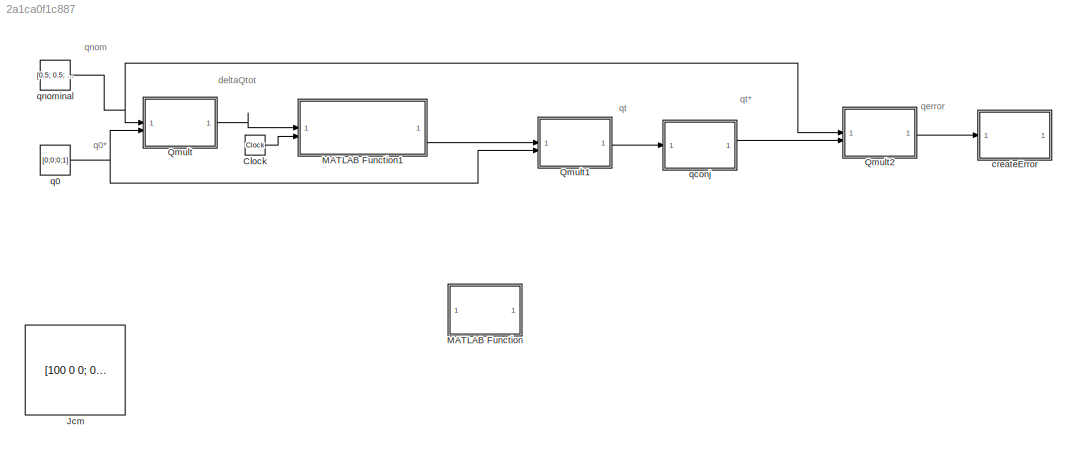
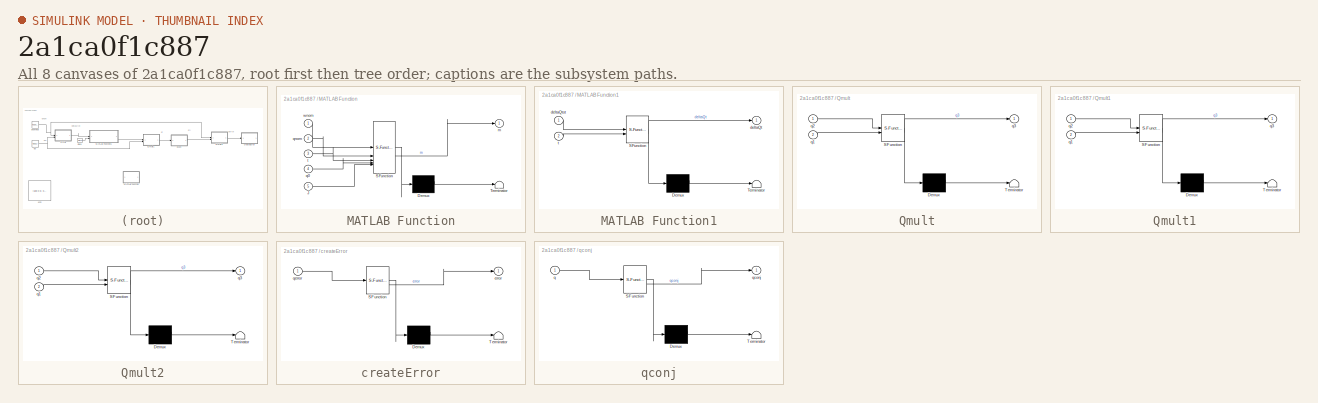
[diagram: thumbnail index - all 8 canvases of the model, root first then tree order]
MODEL slx_2a1ca0f1c887
KIND model
CONFIG AbsTol = auto
CONFIG EnableMultiTasking = off
CONFIG FixedStep = auto
CONFIG MaxStep = auto
CONFIG MinStep = auto
CONFIG RelTol = 1e-3
CONFIG SampleTimeConstraint = Unconstrained
CONFIG SolverName = VariableStepAuto
CONFIG StartTime = 0.0
CONFIG StopTime = 1800.0
BLOCK [Clock] Clock
BLOCK [Constant] Jcm
  Commented = on
  Value = [100 0 0; 0 60 0; 0 0 50]
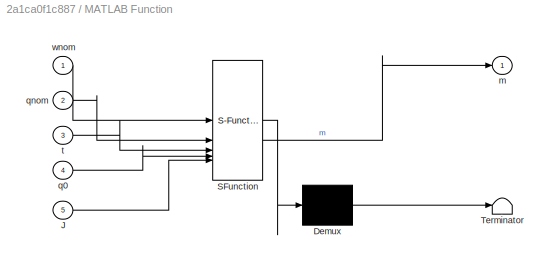
BLOCK [SubSystem] MATLAB Function
  ErrorFcn = Stateflow.Translate.translate
  LibrarySourceBlock = simulink/User-Defined\nFunctions/MATLAB Function
  PermitHierarchicalResolution = ExplicitOnly
  SFBlockType = MATLAB Function
  TreatAsAtomicUnit = on
BLOCK [Demux] MATLAB Function/ Demux 
  Outputs = 1
BLOCK [S-Function] MATLAB Function/ SFunction 
  EnableBusSupport = off
  FunctionName = sf_sfun
  PortCounts = [5 2]
  SFcnIsStateOwnerBlock = off
  SFunctionDeploymentMode = off
  Tag = Stateflow S-Function 7
BLOCK [Terminator] MATLAB Function/ Terminator 
BLOCK [Inport] MATLAB Function/J
  Port = 5
BLOCK [Outport] MATLAB Function/m
BLOCK [Inport] MATLAB Function/q0
  Port = 4
BLOCK [Inport] MATLAB Function/qnom
  Port = 2
BLOCK [Inport] MATLAB Function/t
  Port = 3
BLOCK [Inport] MATLAB Function/wnom
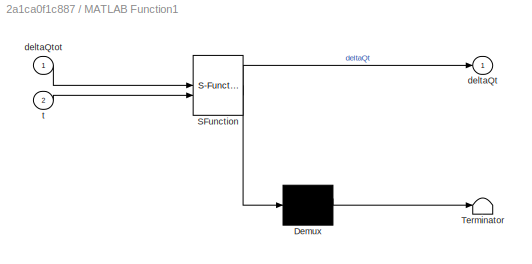
BLOCK [SubSystem] MATLAB Function1
  ErrorFcn = Stateflow.Translate.translate
  LibrarySourceBlock = simulink/User-Defined\nFunctions/MATLAB Function
  PermitHierarchicalResolution = ExplicitOnly
  SFBlockType = MATLAB Function
  TreatAsAtomicUnit = on
BLOCK [Demux] MATLAB Function1/ Demux 
  Outputs = 1
BLOCK [S-Function] MATLAB Function1/ SFunction 
  EnableBusSupport = on
  FunctionName = sf_sfun
  PortCounts = [2 2]
  SFcnIsStateOwnerBlock = off
  SFunctionDeploymentMode = off
  Tag = Stateflow S-Function 1
BLOCK [Terminator] MATLAB Function1/ Terminator 
BLOCK [Outport] MATLAB Function1/deltaQt
BLOCK [Inport] MATLAB Function1/deltaQtot
BLOCK [Inport] MATLAB Function1/t
  Port = 2
BLOCK [SubSystem] Qmult
  ErrorFcn = Stateflow.Translate.translate
  PermitHierarchicalResolution = ExplicitOnly
  SFBlockType = MATLAB Function
  TreatAsAtomicUnit = on
BLOCK [Demux] Qmult/ Demux 
  Outputs = 1
BLOCK [S-Function] Qmult/ SFunction 
  EnableBusSupport = on
  FunctionName = sf_sfun
  PortCounts = [2 2]
  SFcnIsStateOwnerBlock = off
  SFunctionDeploymentMode = off
  Tag = Stateflow S-Function 4
BLOCK [Terminator] Qmult/ Terminator 
BLOCK [Inport] Qmult/q1
  Port = 2
BLOCK [Inport] Qmult/q2
BLOCK [Outport] Qmult/q3
BLOCK [SubSystem] Qmult1
  ErrorFcn = Stateflow.Translate.translate
  PermitHierarchicalResolution = ExplicitOnly
  SFBlockType = MATLAB Function
  TreatAsAtomicUnit = on
BLOCK [Demux] Qmult1/ Demux 
  Outputs = 1
BLOCK [S-Function] Qmult1/ SFunction 
  EnableBusSupport = on
  FunctionName = sf_sfun
  PortCounts = [2 2]
  SFcnIsStateOwnerBlock = off
  SFunctionDeploymentMode = off
  Tag = Stateflow S-Function 2
BLOCK [Terminator] Qmult1/ Terminator 
BLOCK [Inport] Qmult1/q1
  Port = 2
BLOCK [Inport] Qmult1/q2
BLOCK [Outport] Qmult1/q3
BLOCK [SubSystem] Qmult2
  ErrorFcn = Stateflow.Translate.translate
  PermitHierarchicalResolution = ExplicitOnly
  SFBlockType = MATLAB Function
  TreatAsAtomicUnit = on
BLOCK [Demux] Qmult2/ Demux 
  Outputs = 1
BLOCK [S-Function] Qmult2/ SFunction 
  EnableBusSupport = on
  FunctionName = sf_sfun
  PortCounts = [2 2]
  SFcnIsStateOwnerBlock = off
  SFunctionDeploymentMode = off
  Tag = Stateflow S-Function 5
BLOCK [Terminator] Qmult2/ Terminator 
BLOCK [Inport] Qmult2/q1
  Port = 2
BLOCK [Inport] Qmult2/q2
BLOCK [Outport] Qmult2/q3
BLOCK [SubSystem] createError
  ErrorFcn = Stateflow.Translate.translate
  LibrarySourceBlock = simulink/User-Defined\nFunctions/MATLAB Function
  PermitHierarchicalResolution = ExplicitOnly
  SFBlockType = MATLAB Function
  TreatAsAtomicUnit = on
BLOCK [Demux] createError/ Demux 
  Outputs = 1
BLOCK [S-Function] createError/ SFunction 
  EnableBusSupport = off
  FunctionName = sf_sfun
  PortCounts = [1 2]
  SFcnIsStateOwnerBlock = off
  SFunctionDeploymentMode = off
  Tag = Stateflow S-Function 6
BLOCK [Terminator] createError/ Terminator 
BLOCK [Outport] createError/error
BLOCK [Inport] createError/qerror
BLOCK [Constant] q0
  Value = [0;0;0;1]
BLOCK [SubSystem] qconj
  ErrorFcn = Stateflow.Translate.translate
  LibrarySourceBlock = simulink/User-Defined\nFunctions/MATLAB Function
  PermitHierarchicalResolution = ExplicitOnly
  SFBlockType = MATLAB Function
  TreatAsAtomicUnit = on
BLOCK [Demux] qconj/ Demux 
  Outputs = 1
BLOCK [S-Function] qconj/ SFunction 
  EnableBusSupport = off
  FunctionName = sf_sfun
  PortCounts = [1 2]
  SFcnIsStateOwnerBlock = off
  SFunctionDeploymentMode = off
  Tag = Stateflow S-Function 3
BLOCK [Terminator] qconj/ Terminator 
BLOCK [Inport] qconj/q
BLOCK [Outport] qconj/qconj
BLOCK [Constant] qnominal
  Value = [0.5; 0.5; 0.5; 0.5]
ANNOTATION (root): deltaQtot
ANNOTATION (root): q0*
ANNOTATION (root): qerror
ANNOTATION (root): qnom
ANNOTATION (root): qt
ANNOTATION (root): qt*
LINE Clock:1 -> MATLAB Function1:2
LINE MATLAB Function1:1 -> Qmult1:1
LINE Qmult1:1 -> qconj:1
LINE Qmult2:1 -> createError:1
LINE Qmult:1 -> MATLAB Function1:1
NET q0:1 -> Qmult1:2, Qmult:2
LINE qconj:1 -> Qmult2:2
NET qnominal:1 -> Qmult2:1, Qmult:1
note: NET lines group one-source signal fan-out (src -> all destinations, sorted); 1:1 wires keep LINE
CHART MATLAB Function1 states=1 transitions=1
  STATE_LABEL 'eML_blk_kernel()'
  STATE_LABEL 'SCRIPT:\nfunction deltaQt = fcn(deltaQtot,t)\n\nt1 = 1800;\n\ndeltaThetatot = 2*acos(deltaQtot(4));\n\ndeltaThetat = (deltaThetatot/t1) * (t);\n\ne = deltaQtot(1:3)./sin(deltaThetatot/2);\n\ndeltaQt = zeros(4,1);\n\ndeltaQt(4) = cos(deltaThetat/2);\n\ndeltaQt(1:3) = sin(deltaThetat/2).*e;\n'
CHART Qmult1 states=1 transitions=1
  STATE_LABEL 'eML_blk_kernel()'
  STATE_LABEL 'SCRIPT:\nfunction q3 = qmult(q2,q1)\n\nq3 = [q2(4).*q1(1:3) + q1(4).*q2(1:3) - cross(q2(1:3),q1(1:3));\n    q2(4)*q1(4) - dot(q2(1:3),q1(1:3))];\n'
CHART qconj states=1 transitions=1
  STATE_LABEL 'eML_blk_kernel()'
  STATE_LABEL 'SCRIPT:\nfunction qconj = fcn(q)\nqconj = q;\nqconj(1:3) = -q(1:3);\n\n'
CHART Qmult states=1 transitions=1
  STATE_LABEL 'eML_blk_kernel()'
  STATE_LABEL 'SCRIPT:\nfunction q3 = qmult(q2,q1)\n\nq3 = [q2(4).*q1(1:3) + q1(4).*q2(1:3) - cross(q2(1:3),q1(1:3));\n    q2(4)*q1(4) - dot(q2(1:3),q1(1:3))];\n'
CHART Qmult2 states=1 transitions=1
  STATE_LABEL 'eML_blk_kernel()'
  STATE_LABEL 'SCRIPT:\nfunction q3 = qmult(q2,q1)\n\nq3 = [q2(4).*q1(1:3) + q1(4).*q2(1:3) - cross(q2(1:3),q1(1:3));\n    q2(4)*q1(4) - dot(q2(1:3),q1(1:3))];\n'
CHART createError states=1 transitions=1
  STATE_LABEL 'eML_blk_kernel()'
  STATE_LABEL 'SCRIPT:\nfunction error = fcn(qerror)\n\nerror = 2*qerror(1:3);\n\nerror = error / qerror(4);\n'
CHART MATLAB Function states=1 transitions=1
  STATE_LABEL 'eML_blk_kernel()'
  STATE_LABEL 'SCRIPT:\nfunction m = fcn(wnom,qnom,t,q0,J)\n\ndeltaQ = 0;\ny = u;\n'
CHART  states=0 transitions=0
CHART  states=0 transitions=0
CHART  states=0 transitions=0
CHART  states=0 transitions=0
CHART  states=0 transitions=0
CHART  states=0 transitions=0
CHART  states=0 transitions=0
